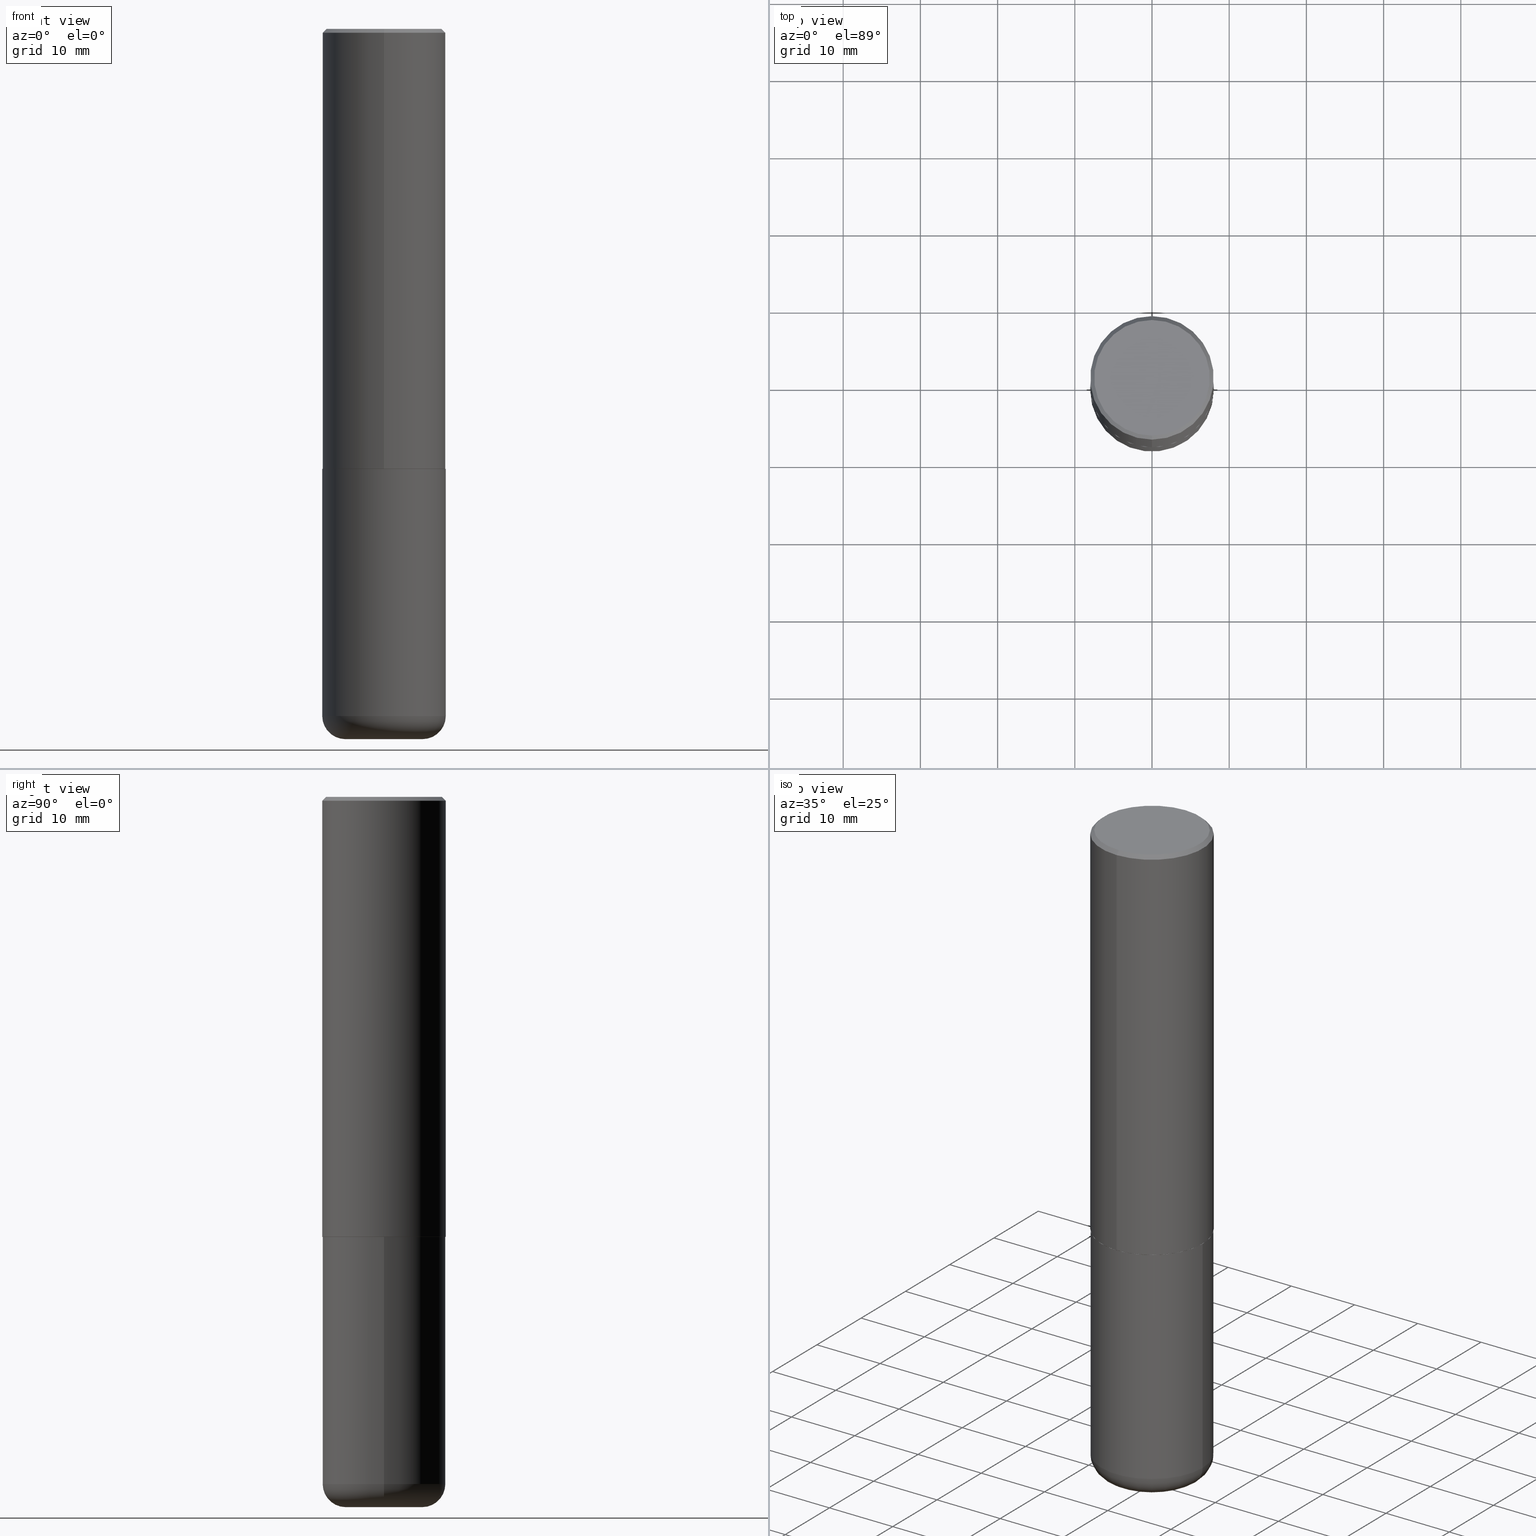
[diagram: canonical four-view strip — front | top / right | iso, engineering-drawing reading convention]
A machine part, canonical four-view strip (front | top / right | iso — engineering-drawing reading convention). The complete STEP part file that produces these views, byte-faithful:
ISO-10303-21;
HEADER;
FILE_DESCRIPTION (( 'STEP AP203' ),
    '1' );
FILE_NAME ('47136.STEP',
    '2024-03-05T22:31:48',
    ( '' ),
    ( '' ),
    'SwSTEP 2.0',
    'SolidWorks 2023',
    '' );
FILE_SCHEMA (( 'CONFIG_CONTROL_DESIGN' ));
ENDSEC;

DATA;
#1 = EDGE_LOOP ( 'NONE', ( #324, #160, #65, #389 ) ) ;
#2 = CARTESIAN_POINT ( 'NONE',  ( 2.059624841783564063E-15, 0.2949499999999999345, -9.678634946549864323E-16 ) ) ;
#3 = ORIENTED_EDGE ( 'NONE', *, *, #71, .F. ) ;
#4 = EDGE_CURVE ( 'NONE', #197, #285, #134, .T. ) ;
#5 = AXIS2_PLACEMENT_3D ( 'NONE', #89, #239, #58 ) ;
#6 = CIRCLE ( 'NONE', #146, 0.1968500000000000250 ) ;
#7 = CYLINDRICAL_SURFACE ( 'NONE', #52, 0.3149500000000000077 ) ;
#8 = ORIENTED_EDGE ( 'NONE', *, *, #110, .T. ) ;
#9 = DIRECTION ( 'NONE',  ( 1.000000000000000000, -6.982962677686266711E-15, 4.876176775795936353E-29 ) ) ;
#10 = ADVANCED_FACE ( 'NONE', ( #270 ), #73, .T. ) ;
#11 = APPLICATION_CONTEXT ( 'configuration controlled 3d designs of mechanical parts and assemblies' ) ;
#12 = FACE_OUTER_BOUND ( 'NONE', #275, .T. ) ;
#13 = AXIS2_PLACEMENT_3D ( 'NONE', #390, #196, #171 ) ;
#14 = ORIENTED_EDGE ( 'NONE', *, *, #348, .F. ) ;
#15 = PERSON_AND_ORGANIZATION ( #234, #17 ) ;
#16 = ORIENTED_EDGE ( 'NONE', *, *, #333, .T. ) ;
#17 = ORGANIZATION ( 'UNSPECIFIED', 'UNSPECIFIED', '' ) ;
#18 = CARTESIAN_POINT ( 'NONE',  ( 0.1968500000000000250, -1.402074161239241518E-14, -3.622000000000000330 ) ) ;
#19 = ORIENTED_EDGE ( 'NONE', *, *, #381, .F. ) ;
#20 = PRODUCT ( '47136', '47136', '', ( #299 ) ) ;
#21 = APPROVAL_STATUS ( 'not_yet_approved' ) ;
#22 = VERTEX_POINT ( 'NONE', #18 ) ;
#23 = ORIENTED_EDGE ( 'NONE', *, *, #329, .F. ) ;
#24 = LOCAL_TIME ( 17, 31, 48.00000000000000000, #276 ) ;
#25 = EDGE_CURVE ( 'NONE', #22, #131, #238, .T. ) ;
#26 = DIRECTION ( 'NONE',  ( 4.937700262164540154E-15, 0.7071067811865440200, -0.7071067811865511255 ) ) ;
#27 = DIRECTION ( 'NONE',  ( -4.851104656540955597E-15, -0.7071067811865487940, -0.7071067811865461294 ) ) ;
#28 = DIRECTION ( 'NONE',  ( -2.445468806185136597E-29, 3.491481338843145583E-15, 1.000000000000000000 ) ) ;
#29 = VECTOR ( 'NONE', #194, 39.37007874015748854 ) ;
#30 = CC_DESIGN_APPROVAL ( #77, ( #135 ) ) ;
#31 = VERTEX_POINT ( 'NONE', #82 ) ;
#32 = FACE_OUTER_BOUND ( 'NONE', #104, .T. ) ;
#33 = VERTEX_POINT ( 'NONE', #300 ) ;
#34 = CC_DESIGN_PERSON_AND_ORGANIZATION_ASSIGNMENT ( #212, #118, ( #20 ) ) ;
#35 = CARTESIAN_POINT ( 'NONE',  ( 2.234301632597690306E-15, 0.3139499999999921798, -2.244000000000001105 ) ) ;
#36 = ORIENTED_EDGE ( 'NONE', *, *, #406, .T. ) ;
#37 = DIRECTION ( 'NONE',  ( -2.445731576433639542E-29, 3.491105036891335583E-15, 1.000000000000000000 ) ) ;
#38 = CIRCLE ( 'NONE', #399, 0.2949499999999999345 ) ;
#39 = VERTEX_POINT ( 'NONE', #209 ) ;
#40 = DIRECTION ( 'NONE',  ( -2.445731576433639542E-29, 3.491105036891335583E-15, 1.000000000000000000 ) ) ;
#41 = EDGE_CURVE ( 'NONE', #33, #197, #117, .T. ) ;
#42 = DIRECTION ( 'NONE',  ( -2.445468806185136597E-29, 3.491481338843145583E-15, 1.000000000000000000 ) ) ;
#43 = AXIS2_PLACEMENT_3D ( 'NONE', #304, #61, #355 ) ;
#44 = CIRCLE ( 'NONE', #278, 0.1181000000000002742 ) ;
#45 = COORDINATED_UNIVERSAL_TIME_OFFSET ( 5, 0, .BEHIND. ) ;
#46 = ORIENTED_EDGE ( 'NONE', *, *, #186, .T. ) ;
#47 = CALENDAR_DATE ( 2024, 5, 3 ) ;
#48 = CARTESIAN_POINT ( 'NONE',  ( -2.199284095337290265E-15, -0.3149500000000001743, 1.099523531368926621E-15 ) ) ;
#49 = CC_DESIGN_DATE_AND_TIME_ASSIGNMENT ( #377, #81, ( #346 ) ) ;
#50 = PERSON_AND_ORGANIZATION_ROLE ( 'classification_officer' ) ;
#51 = DIRECTION ( 'NONE',  ( -2.445731576433639542E-29, 3.491105036891335583E-15, 1.000000000000000000 ) ) ;
#52 = AXIS2_PLACEMENT_3D ( 'NONE', #322, #42, #9 ) ;
#53 = APPROVAL_STATUS ( 'not_yet_approved' ) ;
#54 = CARTESIAN_POINT ( 'NONE',  ( -0.3149500000000000077, 2.237854346276435590E-15, -1.549218606675782676E-29 ) ) ;
#55 = ADVANCED_FACE ( 'NONE', ( #306 ), #391, .T. ) ;
#56 = PERSON_AND_ORGANIZATION ( #234, #17 ) ;
#57 = LINE ( 'NONE', #397, #140 ) ;
#58 = DIRECTION ( 'NONE',  ( 1.000000000000000000, -6.982962677686269866E-15, 4.883557194083114022E-29 ) ) ;
#59 = DIRECTION ( 'NONE',  ( -6.982962677686267499E-15, -1.000000000000000000, 3.491105036891335189E-15 ) ) ;
#60 = CARTESIAN_POINT ( 'NONE',  ( 4.891463152867296425E-31, -6.982210073782693945E-17, -0.02000000000000006981 ) ) ;
#61 = DIRECTION ( 'NONE',  ( -2.445468806185136597E-29, 3.491481338843145583E-15, 1.000000000000000000 ) ) ;
#62 = LINE ( 'NONE', #284, #108 ) ;
#63 = AXIS2_PLACEMENT_3D ( 'NONE', #91, #351, #192 ) ;
#64 = ADVANCED_FACE ( 'NONE', ( #277 ), #153, .T. ) ;
#65 = ORIENTED_EDGE ( 'NONE', *, *, #41, .T. ) ;
#66 = CARTESIAN_POINT ( 'NONE',  ( 5.488221657517086734E-29, -7.834039702784155040E-15, -2.243999999999999773 ) ) ;
#67 = ORIENTED_EDGE ( 'NONE', *, *, #393, .T. ) ;
#68 = DIRECTION ( 'NONE',  ( -6.982962677686266711E-15, -1.000000000000000000, 3.480615376543096919E-15 ) ) ;
#69 = ADVANCED_BREP_SHAPE_REPRESENTATION ( '47136', ( #206, #345, #216 ), #344 ) ;
#70 = ORIENTED_EDGE ( 'NONE', *, *, #240, .T. ) ;
#71 = EDGE_CURVE ( 'NONE', #385, #39, #57, .T. ) ;
#72 = DIRECTION ( 'NONE',  ( 6.982962677686265922E-15, 1.000000000000000000, -3.496670018878888311E-15 ) ) ;
#73 = TOROIDAL_SURFACE ( 'NONE', #5, 0.1968500000000000250, 0.1181000000000002881 ) ;
#74 = AXIS2_PLACEMENT_3D ( 'NONE', #60, #187, #418 ) ;
#75 = DIRECTION ( 'NONE',  ( -6.982962677686267499E-15, -1.000000000000000000, 3.491105036891335189E-15 ) ) ;
#76 = CARTESIAN_POINT ( 'NONE',  ( 4.891463152867296425E-31, -6.982210073782693945E-17, -0.02000000000000006981 ) ) ;
#77 = APPROVAL ( #53, 'UNSPECIFIED' ) ;
#78 = DIRECTION ( 'NONE',  ( 6.982962677686265922E-15, 1.000000000000000000, -3.491105036891335583E-15 ) ) ;
#79 = ORIENTED_EDGE ( 'NONE', *, *, #254, .T. ) ;
#80 = LINE ( 'NONE', #48, #120 ) ;
#81 = DATE_TIME_ROLE ( 'creation_date' ) ;
#82 = CARTESIAN_POINT ( 'NONE',  ( -2.160713844398143757E-15, -0.3149500000000001743, -0.01999999999999896652 ) ) ;
#83 = ADVANCED_FACE ( 'NONE', ( #367 ), #375, .T. ) ;
#84 = DIRECTION ( 'NONE',  ( -6.982962677686265922E-15, -1.000000000000000000, 3.469564049740290009E-15 ) ) ;
#85 = AXIS2_PLACEMENT_3D ( 'NONE', #382, #97, #221 ) ;
#86 = APPROVAL_ROLE ( '' ) ;
#87 = ORIENTED_EDGE ( 'NONE', *, *, #260, .T. ) ;
#88 = SECURITY_CLASSIFICATION_LEVEL ( 'unclassified' ) ;
#89 = CARTESIAN_POINT ( 'NONE',  ( 8.568678149992099474E-29, -1.223380146317249786E-14, -3.503899999999999793 ) ) ;
#90 = DESIGN_CONTEXT ( 'detailed design', #11, 'design' ) ;
#91 = CARTESIAN_POINT ( 'NONE',  ( 5.487632001079445967E-29, -7.834884124364017250E-15, -2.243999999999999773 ) ) ;
#92 = EDGE_CURVE ( 'NONE', #341, #31, #80, .T. ) ;
#93 = CIRCLE ( 'NONE', #352, 0.3149500000000002853 ) ;
#94 = CIRCLE ( 'NONE', #408, 0.1181000000000002742 ) ;
#95 = LOCAL_TIME ( 17, 31, 48.00000000000000000, #45 ) ;
#96 = DIRECTION ( 'NONE',  ( -2.445731576433639542E-29, 3.491105036891335583E-15, 1.000000000000000000 ) ) ;
#97 = DIRECTION ( 'NONE',  ( 2.438088387897960049E-29, -3.491481338843145188E-15, -1.000000000000000000 ) ) ;
#98 = ORIENTED_EDGE ( 'NONE', *, *, #92, .T. ) ;
#99 = CARTESIAN_POINT ( 'NONE',  ( 2.199284095337290265E-15, 0.3149500000000000077, -0.02000000000000116962 ) ) ;
#100 = ORIENTED_EDGE ( 'NONE', *, *, #369, .T. ) ;
#101 = FACE_OUTER_BOUND ( 'NONE', #201, .T. ) ;
#102 = AXIS2_PLACEMENT_3D ( 'NONE', #347, #124, #59 ) ;
#103 = EDGE_CURVE ( 'NONE', #341, #385, #93, .T. ) ;
#104 = EDGE_LOOP ( 'NONE', ( #70, #67 ) ) ;
#105 = DIRECTION ( 'NONE',  ( -2.445468806185136597E-29, 3.491481338843145583E-15, 1.000000000000000000 ) ) ;
#106 = EDGE_LOOP ( 'NONE', ( #214, #253 ) ) ;
#107 = DIRECTION ( 'NONE',  ( -2.445731576433639542E-29, 3.491105036891335583E-15, 1.000000000000000000 ) ) ;
#108 = VECTOR ( 'NONE', #27, 39.37007874015748854 ) ;
#109 = CARTESIAN_POINT ( 'NONE',  ( 4.891463152867296425E-31, -6.982210073782693945E-17, -0.02000000000000006981 ) ) ;
#110 = EDGE_CURVE ( 'NONE', #258, #285, #340, .T. ) ;
#111 = CALENDAR_DATE ( 2024, 5, 3 ) ;
#112 = DIRECTION ( 'NONE',  ( -2.445731576433639542E-29, 3.491105036891335583E-15, 1.000000000000000000 ) ) ;
#113 = CALENDAR_DATE ( 2024, 5, 3 ) ;
#114 = CARTESIAN_POINT ( 'NONE',  ( 5.488221657517087855E-29, -7.834039702784156618E-15, -2.244000000000000217 ) ) ;
#115 = EDGE_CURVE ( 'NONE', #33, #258, #325, .T. ) ;
#116 = SHAPE_DEFINITION_REPRESENTATION ( #182, #69 ) ;
#117 = LINE ( 'NONE', #183, #157 ) ;
#118 = PERSON_AND_ORGANIZATION_ROLE ( 'design_owner' ) ;
#119 = DIRECTION ( 'NONE',  ( 1.000000000000000000, -6.982962677686267499E-15, 0.000000000000000000 ) ) ;
#120 = VECTOR ( 'NONE', #51, 39.37007874015748143 ) ;
#121 = DATE_AND_TIME ( #47, #191 ) ;
#122 = EDGE_LOOP ( 'NONE', ( #193, #133, #145, #331 ) ) ;
#123 = FACE_OUTER_BOUND ( 'NONE', #106, .T. ) ;
#124 = DIRECTION ( 'NONE',  ( -2.445731576433639542E-29, 3.491105036891335583E-15, 1.000000000000000000 ) ) ;
#125 = CC_DESIGN_PERSON_AND_ORGANIZATION_ASSIGNMENT ( #15, #370, ( #346 ) ) ;
#126 = VECTOR ( 'NONE', #167, 39.37007874015748854 ) ;
#127 = CC_DESIGN_SECURITY_CLASSIFICATION ( #303, ( #135 ) ) ;
#128 = DIRECTION ( 'NONE',  ( -1.000000000000000000, 7.105427357601003436E-15, 0.000000000000000000 ) ) ;
#129 = CC_DESIGN_PERSON_AND_ORGANIZATION_ASSIGNMENT ( #207, #50, ( #303 ) ) ;
#130 = DIRECTION ( 'NONE',  ( -2.445468806185136597E-29, 3.491481338843145583E-15, 1.000000000000000000 ) ) ;
#131 = VERTEX_POINT ( 'NONE', #279 ) ;
#132 = CYLINDRICAL_SURFACE ( 'NONE', #265, 0.3149500000000000077 ) ;
#133 = ORIENTED_EDGE ( 'NONE', *, *, #165, .T. ) ;
#134 = CIRCLE ( 'NONE', #365, 0.3149500000000000077 ) ;
#135 = PRODUCT_DEFINITION_FORMATION_WITH_SPECIFIED_SOURCE ( 'ANY', '', #20, .NOT_KNOWN. ) ;
#136 = ORIENTED_EDGE ( 'NONE', *, *, #333, .F. ) ;
#137 = DIRECTION ( 'NONE',  ( 2.445731576433639542E-29, -3.491105036891335583E-15, -1.000000000000000000 ) ) ;
#138 = ORIENTED_EDGE ( 'NONE', *, *, #103, .T. ) ;
#139 = CARTESIAN_POINT ( 'NONE',  ( 2.237854346276464384E-15, 0.3149499999999924027, -2.243000000000000771 ) ) ;
#140 = VECTOR ( 'NONE', #112, 39.37007874015748143 ) ;
#141 = ADVANCED_FACE ( 'NONE', ( #101 ), #132, .T. ) ;
#142 = DIRECTION ( 'NONE',  ( -2.445731576433639542E-29, 3.491105036891335583E-15, 1.000000000000000000 ) ) ;
#143 = ORIENTED_EDGE ( 'NONE', *, *, #348, .T. ) ;
#144 = COORDINATED_UNIVERSAL_TIME_OFFSET ( 5, 0, .BEHIND. ) ;
#145 = ORIENTED_EDGE ( 'NONE', *, *, #329, .T. ) ;
#146 = AXIS2_PLACEMENT_3D ( 'NONE', #223, #130, #412 ) ;
#147 = DATE_AND_TIME ( #111, #271 ) ;
#148 = ORIENTED_EDGE ( 'NONE', *, *, #186, .F. ) ;
#149 = ORIENTED_EDGE ( 'NONE', *, *, #165, .F. ) ;
#150 = CALENDAR_DATE ( 2024, 5, 3 ) ;
#151 = DIRECTION ( 'NONE',  ( -2.445731576433639542E-29, 3.491105036891335583E-15, 1.000000000000000000 ) ) ;
#152 = AXIS2_PLACEMENT_3D ( 'NONE', #109, #107, #388 ) ;
#153 = CYLINDRICAL_SURFACE ( 'NONE', #263, 0.3149500000000001743 ) ;
#154 = CARTESIAN_POINT ( 'NONE',  ( 5.488221657517087855E-29, -7.834039702784156618E-15, -2.244000000000000217 ) ) ;
#155 = FACE_OUTER_BOUND ( 'NONE', #315, .T. ) ;
#156 = EDGE_CURVE ( 'NONE', #181, #39, #255, .T. ) ;
#157 = VECTOR ( 'NONE', #308, 39.37007874015748143 ) ;
#158 = APPROVAL_PERSON_ORGANIZATION ( #204, #269, #404 ) ;
#159 = DIRECTION ( 'NONE',  ( -6.982962677686266711E-15, -1.000000000000000000, 3.480615376543096919E-15 ) ) ;
#160 = ORIENTED_EDGE ( 'NONE', *, *, #381, .T. ) ;
#161 = CARTESIAN_POINT ( 'NONE',  ( 0.1968500000000000250, -1.360839766627503947E-14, -3.503899999999999793 ) ) ;
#162 = ORIENTED_EDGE ( 'NONE', *, *, #156, .T. ) ;
#163 = CARTESIAN_POINT ( 'NONE',  ( -2.199284095337236228E-15, -0.3149500000000081124, -2.242999999999998550 ) ) ;
#164 = ORIENTED_EDGE ( 'NONE', *, *, #243, .F. ) ;
#165 = EDGE_CURVE ( 'NONE', #229, #31, #62, .T. ) ;
#166 = CLOSED_SHELL ( 'NONE', ( #141, #10, #310, #398, #83, #281 ) ) ;
#167 = DIRECTION ( 'NONE',  ( -4.937700262164378437E-15, -0.7071067811865208164, 0.7071067811865739960 ) ) ;
#168 = CIRCLE ( 'NONE', #152, 0.3149500000000000632 ) ;
#169 = CARTESIAN_POINT ( 'NONE',  ( -3.024779852765215528E-45, 4.317654595143425060E-31, 1.236758719522255372E-16 ) ) ;
#170 = CYLINDRICAL_SURFACE ( 'NONE', #361, 0.3149500000000001743 ) ;
#171 = DIRECTION ( 'NONE',  ( -6.982962677686266711E-15, -1.000000000000000000, 3.480615376543096919E-15 ) ) ;
#172 = DATE_AND_TIME ( #113, #95 ) ;
#173 = ORIENTED_EDGE ( 'NONE', *, *, #260, .F. ) ;
#174 = ADVANCED_FACE ( 'NONE', ( #188 ), #313, .F. ) ;
#175 = CARTESIAN_POINT ( 'NONE',  ( 0.000000000000000000, 0.000000000000000000, 0.000000000000000000 ) ) ;
#176 = ORIENTED_EDGE ( 'NONE', *, *, #25, .T. ) ;
#177 = DIRECTION ( 'NONE',  ( 1.000000000000000000, -6.982962677686266711E-15, 0.000000000000000000 ) ) ;
#178 = PERSON_AND_ORGANIZATION_ROLE ( 'creator' ) ;
#179 = DIRECTION ( 'NONE',  ( -2.445468806185136877E-29, 3.491481338843145188E-15, 1.000000000000000000 ) ) ;
#180 = PERSON_AND_ORGANIZATION ( #234, #17 ) ;
#181 = VERTEX_POINT ( 'NONE', #411 ) ;
#182 = PRODUCT_DEFINITION_SHAPE ( 'NONE', 'NONE',  #346 ) ;
#183 = CARTESIAN_POINT ( 'NONE',  ( 0.3149500000000000077, -2.199284095337289871E-15, 1.535751875536930130E-29 ) ) ;
#184 = AXIS2_PLACEMENT_3D ( 'NONE', #76, #357, #200 ) ;
#185 = DIRECTION ( 'NONE',  ( -2.445731576433639262E-29, 3.491105036891335583E-15, 1.000000000000000000 ) ) ;
#186 = EDGE_CURVE ( 'NONE', #261, #385, #226, .T. ) ;
#187 = DIRECTION ( 'NONE',  ( 2.445731576433639542E-29, -3.491105036891335583E-15, -1.000000000000000000 ) ) ;
#188 = FACE_OUTER_BOUND ( 'NONE', #318, .T. ) ;
#189 = EDGE_LOOP ( 'NONE', ( #138, #364, #23, #247 ) ) ;
#190 = AXIS2_PLACEMENT_3D ( 'NONE', #241, #332, #409 ) ;
#191 = LOCAL_TIME ( 17, 31, 48.00000000000000000, #372 ) ;
#192 = DIRECTION ( 'NONE',  ( -1.000000000000000000, 6.982962677686265922E-15, -4.876176775795935793E-29 ) ) ;
#193 = ORIENTED_EDGE ( 'NONE', *, *, #393, .F. ) ;
#194 = DIRECTION ( 'NONE',  ( 5.024295867787889629E-15, 0.7071067811865257013, 0.7071067811865691111 ) ) ;
#195 = ORIENTED_EDGE ( 'NONE', *, *, #4, .T. ) ;
#196 = DIRECTION ( 'NONE',  ( -2.445731576433639542E-29, 3.491105036891335583E-15, 1.000000000000000000 ) ) ;
#197 = VERTEX_POINT ( 'NONE', #311 ) ;
#198 = CARTESIAN_POINT ( 'NONE',  ( -2.192301132659548636E-15, -0.3139500000000078339, -2.243999999999998884 ) ) ;
#199 = CIRCLE ( 'NONE', #301, 0.3149500000000000077 ) ;
#200 = DIRECTION ( 'NONE',  ( -6.982962677686265922E-15, -1.000000000000000000, 3.496670018878888311E-15 ) ) ;
#201 = EDGE_LOOP ( 'NONE', ( #256, #8, #356, #387 ) ) ;
#202 = CC_DESIGN_PERSON_AND_ORGANIZATION_ASSIGNMENT ( #402, #305, ( #135 ) ) ;
#203 = AXIS2_PLACEMENT_3D ( 'NONE', #294, #37, #259 ) ;
#204 = PERSON_AND_ORGANIZATION ( #234, #17 ) ;
#205 = DIRECTION ( 'NONE',  ( -6.982962677686266711E-15, -1.000000000000000000, 3.480615376543096919E-15 ) ) ;
#206 = MANIFOLD_SOLID_BREP ( 'Body-Move/Copy2[1]', #166 ) ;
#207 = PERSON_AND_ORGANIZATION ( #234, #17 ) ;
#208 = DIRECTION ( 'NONE',  ( -2.445731576433639542E-29, 3.491105036891335583E-15, 1.000000000000000000 ) ) ;
#209 = CARTESIAN_POINT ( 'NONE',  ( 2.199284095337290265E-15, 0.3149500000000000077, -0.02000000000000116962 ) ) ;
#210 = CONICAL_SURFACE ( 'NONE', #417, 0.3149500000000000632, 0.7853981633974467247 ) ;
#211 = APPROVAL_PERSON_ORGANIZATION ( #180, #368, #400 ) ;
#212 = PERSON_AND_ORGANIZATION ( #234, #17 ) ;
#213 = DATE_TIME_ROLE ( 'classification_date' ) ;
#214 = ORIENTED_EDGE ( 'NONE', *, *, #25, .F. ) ;
#215 = DIRECTION ( 'NONE',  ( -2.445468806185136597E-29, 3.491481338843145583E-15, 1.000000000000000000 ) ) ;
#216 = AXIS2_PLACEMENT_3D ( 'NONE', #175, #407, #336 ) ;
#217 = EDGE_CURVE ( 'NONE', #285, #197, #199, .T. ) ;
#218 = CIRCLE ( 'NONE', #203, 0.3149500000000002853 ) ;
#219 = LOCAL_TIME ( 17, 31, 48.00000000000000000, #334 ) ;
#220 = CARTESIAN_POINT ( 'NONE',  ( 5.487632001079445967E-29, -7.834884124364017250E-15, -2.243999999999999773 ) ) ;
#221 = DIRECTION ( 'NONE',  ( -1.000000000000000000, 6.982962677686265922E-15, -4.876176775795935793E-29 ) ) ;
#222 = EDGE_LOOP ( 'NONE', ( #3, #143, #98, #136 ) ) ;
#223 = CARTESIAN_POINT ( 'NONE',  ( 8.857488016002565597E-29, -1.264614540928987357E-14, -3.622000000000000330 ) ) ;
#224 = VECTOR ( 'NONE', #179, 39.37007874015748143 ) ;
#225 = CIRCLE ( 'NONE', #102, 0.2949499999999999345 ) ;
#226 = LINE ( 'NONE', #317, #29 ) ;
#227 = EDGE_CURVE ( 'NONE', #22, #33, #44, .T. ) ;
#228 = ORIENTED_EDGE ( 'NONE', *, *, #103, .F. ) ;
#229 = VERTEX_POINT ( 'NONE', #248 ) ;
#230 = DIRECTION ( 'NONE',  ( -6.982962677686264344E-15, -1.000000000000000000, 3.491105036891335189E-15 ) ) ;
#231 = EDGE_LOOP ( 'NONE', ( #148, #36, #100, #14 ) ) ;
#232 = AXIS2_PLACEMENT_3D ( 'NONE', #371, #273, #119 ) ;
#233 = LINE ( 'NONE', #198, #126 ) ;
#234 = PERSON ( 'UNSPECIFIED', 'UNSPECIFIED', 'UNSPECIFIED', ('UNSPECIFIED'), ('UNSPECIFIED'), ('UNSPECIFIED') ) ;
#235 =( NAMED_UNIT ( * ) SI_UNIT ( $, .STERADIAN. ) SOLID_ANGLE_UNIT ( ) );
#236 =( CONVERSION_BASED_UNIT ( 'INCH', #264 ) LENGTH_UNIT ( ) NAMED_UNIT ( #323 ) );
#237 = APPROVAL_DATE_TIME ( #339, #77 ) ;
#238 = CIRCLE ( 'NONE', #232, 0.1968500000000000250 ) ;
#239 = DIRECTION ( 'NONE',  ( -2.445468806185136597E-29, 3.491481338843145583E-15, 1.000000000000000000 ) ) ;
#240 = EDGE_CURVE ( 'NONE', #181, #229, #225, .T. ) ;
#241 = CARTESIAN_POINT ( 'NONE',  ( 8.568678149992099474E-29, -1.223380146317249786E-14, -3.503899999999999793 ) ) ;
#242 = CARTESIAN_POINT ( 'NONE',  ( 5.485775925940652970E-29, -7.830548597747266147E-15, -2.242999999999999883 ) ) ;
#243 = EDGE_CURVE ( 'NONE', #267, #261, #366, .T. ) ;
#244 = CALENDAR_DATE ( 2024, 5, 3 ) ;
#245 = ORIENTED_EDGE ( 'NONE', *, *, #227, .F. ) ;
#246 = AXIS2_PLACEMENT_3D ( 'NONE', #394, #142, #68 ) ;
#247 = ORIENTED_EDGE ( 'NONE', *, *, #92, .F. ) ;
#248 = CARTESIAN_POINT ( 'NONE',  ( -2.092108864420428031E-15, -0.2949499999999999345, 1.153377302583324726E-15 ) ) ;
#249 = ADVANCED_FACE ( 'NONE', ( #155 ), #257, .T. ) ;
#250 = CARTESIAN_POINT ( 'NONE',  ( 0.000000000000000000, 0.000000000000000000, 0.000000000000000000 ) ) ;
#251 = CARTESIAN_POINT ( 'NONE',  ( -2.192301132659548636E-15, -0.3139500000000078339, -2.243999999999998884 ) ) ;
#252 = CARTESIAN_POINT ( 'NONE',  ( -0.1968500000000000250, -1.083509808782873928E-14, -3.503899999999999793 ) ) ;
#253 = ORIENTED_EDGE ( 'NONE', *, *, #254, .F. ) ;
#254 = EDGE_CURVE ( 'NONE', #131, #22, #6, .T. ) ;
#255 = LINE ( 'NONE', #99, #392 ) ;
#256 = ORIENTED_EDGE ( 'NONE', *, *, #115, .T. ) ;
#257 = CONICAL_SURFACE ( 'NONE', #74, 0.3149500000000000632, 0.7853981633974467247 ) ;
#258 = VERTEX_POINT ( 'NONE', #282 ) ;
#259 = DIRECTION ( 'NONE',  ( -6.982962677686265922E-15, -1.000000000000000000, 3.469564049740290009E-15 ) ) ;
#260 = EDGE_CURVE ( 'NONE', #131, #258, #94, .T. ) ;
#261 = VERTEX_POINT ( 'NONE', #35 ) ;
#262 = DIRECTION ( 'NONE',  ( -2.445731576433639542E-29, 3.491105036891335583E-15, 1.000000000000000000 ) ) ;
#263 = AXIS2_PLACEMENT_3D ( 'NONE', #338, #208, #376 ) ;
#264 = LENGTH_MEASURE_WITH_UNIT ( LENGTH_MEASURE( 0.02539999999999999897 ), #327 );
#265 = AXIS2_PLACEMENT_3D ( 'NONE', #250, #215, #280 ) ;
#266 =( NAMED_UNIT ( * ) PLANE_ANGLE_UNIT ( ) SI_UNIT ( $, .RADIAN. ) );
#267 = VERTEX_POINT ( 'NONE', #251 ) ;
#268 = AXIS2_PLACEMENT_3D ( 'NONE', #114, #151, #205 ) ;
#269 = APPROVAL ( #21, 'UNSPECIFIED' ) ;
#270 = FACE_OUTER_BOUND ( 'NONE', #353, .T. ) ;
#271 = LOCAL_TIME ( 17, 31, 48.00000000000000000, #144 ) ;
#272 = APPROVAL_DATE_TIME ( #121, #269 ) ;
#273 = DIRECTION ( 'NONE',  ( -2.445468806185136597E-29, 3.491481338843145583E-15, 1.000000000000000000 ) ) ;
#274 = APPLICATION_PROTOCOL_DEFINITION ( 'international standard', 'config_control_design', 1994, #11 ) ;
#275 = EDGE_LOOP ( 'NONE', ( #335, #46, #228, #350 ) ) ;
#276 = COORDINATED_UNIVERSAL_TIME_OFFSET ( 5, 0, .BEHIND. ) ;
#277 = FACE_OUTER_BOUND ( 'NONE', #189, .T. ) ;
#278 = AXIS2_PLACEMENT_3D ( 'NONE', #161, #343, #380 ) ;
#279 = CARTESIAN_POINT ( 'NONE',  ( -0.1968500000000000250, -1.062169457542108922E-14, -3.622000000000000330 ) ) ;
#280 = DIRECTION ( 'NONE',  ( 1.000000000000000000, -6.982962677686266711E-15, 4.876176775795936353E-29 ) ) ;
#281 = ADVANCED_FACE ( 'NONE', ( #123 ), #384, .T. ) ;
#282 = CARTESIAN_POINT ( 'NONE',  ( -0.3149500000000001743, -9.995947116896060296E-15, -3.503899999999999793 ) ) ;
#283 = CIRCLE ( 'NONE', #13, 0.3139500000000000068 ) ;
#284 = CARTESIAN_POINT ( 'NONE',  ( -2.160713844398143757E-15, -0.3149500000000001743, -0.01999999999999896652 ) ) ;
#285 = VERTEX_POINT ( 'NONE', #349 ) ;
#286 = PLANE ( 'NONE',  #401 ) ;
#287 = ORIENTED_EDGE ( 'NONE', *, *, #227, .T. ) ;
#288 = CARTESIAN_POINT ( 'NONE',  ( 0.000000000000000000, 0.000000000000000000, 0.000000000000000000 ) ) ;
#289 = ORIENTED_EDGE ( 'NONE', *, *, #217, .T. ) ;
#290 = CIRCLE ( 'NONE', #316, 0.3149500000000000077 ) ;
#291 = CC_DESIGN_APPROVAL ( #368, ( #303 ) ) ;
#292 = FACE_OUTER_BOUND ( 'NONE', #1, .T. ) ;
#293 = DIRECTION ( 'NONE',  ( 1.000000000000000000, -6.982962677686263555E-15, 0.000000000000000000 ) ) ;
#294 = CARTESIAN_POINT ( 'NONE',  ( 5.485775925940652970E-29, -7.830548597747266147E-15, -2.242999999999999883 ) ) ;
#295 = CIRCLE ( 'NONE', #184, 0.3149500000000000632 ) ;
#296 = APPROVAL_PERSON_ORGANIZATION ( #374, #77, #86 ) ;
#297 = APPROVAL_DATE_TIME ( #172, #368 ) ;
#298 = ORIENTED_EDGE ( 'NONE', *, *, #240, .F. ) ;
#299 = MECHANICAL_CONTEXT ( 'NONE', #414, 'mechanical' ) ;
#300 = CARTESIAN_POINT ( 'NONE',  ( 0.3149500000000001743, -1.443308555850978931E-14, -3.503899999999999793 ) ) ;
#301 = AXIS2_PLACEMENT_3D ( 'NONE', #220, #28, #319 ) ;
#302 = CARTESIAN_POINT ( 'NONE',  ( 5.487632001079445967E-29, -7.834884124364017250E-15, -2.243999999999999773 ) ) ;
#303 = SECURITY_CLASSIFICATION ( '', '', #88 ) ;
#304 = CARTESIAN_POINT ( 'NONE',  ( 8.568678149992099474E-29, -1.223380146317249786E-14, -3.503899999999999793 ) ) ;
#305 = PERSON_AND_ORGANIZATION_ROLE ( 'design_supplier' ) ;
#306 = FACE_OUTER_BOUND ( 'NONE', #231, .T. ) ;
#307 = CC_DESIGN_DATE_AND_TIME_ASSIGNMENT ( #147, #213, ( #303 ) ) ;
#308 = DIRECTION ( 'NONE',  ( -2.445468806185136877E-29, 3.491481338843145188E-15, 1.000000000000000000 ) ) ;
#309 = CONICAL_SURFACE ( 'NONE', #246, 0.3139500000000000068, 0.7853981633974141952 ) ;
#310 = ADVANCED_FACE ( 'NONE', ( #383 ), #379, .F. ) ;
#311 = CARTESIAN_POINT ( 'NONE',  ( 0.3149500000000000077, -1.003416821970130712E-14, -2.243999999999999773 ) ) ;
#312 = DIRECTION ( 'NONE',  ( -6.982962677686265922E-15, -1.000000000000000000, 3.491105036891335583E-15 ) ) ;
#313 = PLANE ( 'NONE',  #337 ) ;
#314 = ADVANCED_FACE ( 'NONE', ( #32 ), #286, .F. ) ;
#315 = EDGE_LOOP ( 'NONE', ( #149, #298, #162, #16 ) ) ;
#316 = AXIS2_PLACEMENT_3D ( 'NONE', #362, #105, #293 ) ;
#317 = CARTESIAN_POINT ( 'NONE',  ( 2.230748918918889014E-15, 0.3139499999999921798, -2.244000000000001105 ) ) ;
#318 = EDGE_LOOP ( 'NONE', ( #164, #321 ) ) ;
#319 = DIRECTION ( 'NONE',  ( 1.000000000000000000, -6.982962677686266711E-15, 0.000000000000000000 ) ) ;
#320 = CC_DESIGN_PERSON_AND_ORGANIZATION_ASSIGNMENT ( #56, #178, ( #135 ) ) ;
#321 = ORIENTED_EDGE ( 'NONE', *, *, #406, .F. ) ;
#322 = CARTESIAN_POINT ( 'NONE',  ( 0.000000000000000000, 0.000000000000000000, 0.000000000000000000 ) ) ;
#323 = DIMENSIONAL_EXPONENTS ( 1.000000000000000000, 0.000000000000000000, 0.000000000000000000, 0.000000000000000000, 0.000000000000000000, 0.000000000000000000, 0.000000000000000000 ) ;
#324 = ORIENTED_EDGE ( 'NONE', *, *, #110, .F. ) ;
#325 = CIRCLE ( 'NONE', #43, 0.3149500000000000077 ) ;
#326 = FACE_OUTER_BOUND ( 'NONE', #122, .T. ) ;
#327 =( LENGTH_UNIT ( ) NAMED_UNIT ( * ) SI_UNIT ( $, .METRE. ) );
#328 = CARTESIAN_POINT ( 'NONE',  ( 4.891463152867296425E-31, -6.982210073782693945E-17, -0.02000000000000006981 ) ) ;
#329 = EDGE_CURVE ( 'NONE', #31, #39, #168, .T. ) ;
#330 = AXIS2_PLACEMENT_3D ( 'NONE', #154, #96, #159 ) ;
#331 = ORIENTED_EDGE ( 'NONE', *, *, #156, .F. ) ;
#332 = DIRECTION ( 'NONE',  ( -2.445468806185136597E-29, 3.491481338843145583E-15, 1.000000000000000000 ) ) ;
#333 = EDGE_CURVE ( 'NONE', #39, #31, #295, .T. ) ;
#334 = COORDINATED_UNIVERSAL_TIME_OFFSET ( 5, 0, .BEHIND. ) ;
#335 = ORIENTED_EDGE ( 'NONE', *, *, #243, .T. ) ;
#336 = DIRECTION ( 'NONE',  ( 1.000000000000000000, 0.000000000000000000, 0.000000000000000000 ) ) ;
#337 = AXIS2_PLACEMENT_3D ( 'NONE', #66, #185, #312 ) ;
#338 = CARTESIAN_POINT ( 'NONE',  ( 0.000000000000000000, 0.000000000000000000, 0.000000000000000000 ) ) ;
#339 = DATE_AND_TIME ( #150, #24 ) ;
#340 = LINE ( 'NONE', #54, #224 ) ;
#341 = VERTEX_POINT ( 'NONE', #163 ) ;
#342 = ADVANCED_FACE ( 'NONE', ( #363 ), #170, .T. ) ;
#343 = DIRECTION ( 'NONE',  ( -6.982962677686266711E-15, -1.000000000000000000, 3.491481338843145583E-15 ) ) ;
#344 =( GEOMETRIC_REPRESENTATION_CONTEXT ( 3 ) GLOBAL_UNCERTAINTY_ASSIGNED_CONTEXT ( ( #410 ) ) GLOBAL_UNIT_ASSIGNED_CONTEXT ( ( #236, #266, #235 ) ) REPRESENTATION_CONTEXT ( 'NONE', 'WORKASPACE' ) );
#345 = MANIFOLD_SOLID_BREP ( 'Body-Move/Copy2[2]', #416 ) ;
#346 = PRODUCT_DEFINITION ( 'UNKNOWN', '', #135, #90 ) ;
#347 = CARTESIAN_POINT ( 'NONE',  ( -3.024779852765215528E-45, 4.317654595143425060E-31, 1.236758719522255372E-16 ) ) ;
#348 = EDGE_CURVE ( 'NONE', #385, #341, #218, .T. ) ;
#349 = CARTESIAN_POINT ( 'NONE',  ( -0.3149500000000000077, -7.796488447491823147E-15, -2.243999999999999773 ) ) ;
#350 = ORIENTED_EDGE ( 'NONE', *, *, #369, .F. ) ;
#351 = DIRECTION ( 'NONE',  ( 2.438088387897960049E-29, -3.491481338843145188E-15, -1.000000000000000000 ) ) ;
#352 = AXIS2_PLACEMENT_3D ( 'NONE', #242, #373, #84 ) ;
#353 = EDGE_LOOP ( 'NONE', ( #176, #87, #378, #245 ) ) ;
#354 = CC_DESIGN_APPROVAL ( #269, ( #346 ) ) ;
#355 = DIRECTION ( 'NONE',  ( 1.000000000000000000, -6.982962677686263555E-15, 0.000000000000000000 ) ) ;
#356 = ORIENTED_EDGE ( 'NONE', *, *, #4, .F. ) ;
#357 = DIRECTION ( 'NONE',  ( -2.445731576433639542E-29, 3.491105036891335583E-15, 1.000000000000000000 ) ) ;
#358 = EDGE_LOOP ( 'NONE', ( #195, #289 ) ) ;
#359 = ADVANCED_FACE ( 'NONE', ( #326 ), #210, .T. ) ;
#360 = DIRECTION ( 'NONE',  ( 2.445731576433639262E-29, -3.491105036891335583E-15, -1.000000000000000000 ) ) ;
#361 = AXIS2_PLACEMENT_3D ( 'NONE', #288, #262, #230 ) ;
#362 = CARTESIAN_POINT ( 'NONE',  ( 8.568678149992099474E-29, -1.223380146317249786E-14, -3.503899999999999793 ) ) ;
#363 = FACE_OUTER_BOUND ( 'NONE', #222, .T. ) ;
#364 = ORIENTED_EDGE ( 'NONE', *, *, #71, .T. ) ;
#365 = AXIS2_PLACEMENT_3D ( 'NONE', #302, #405, #177 ) ;
#366 = CIRCLE ( 'NONE', #330, 0.3139500000000000068 ) ;
#367 = FACE_OUTER_BOUND ( 'NONE', #403, .T. ) ;
#368 = APPROVAL ( #395, 'UNSPECIFIED' ) ;
#369 = EDGE_CURVE ( 'NONE', #267, #341, #233, .T. ) ;
#370 = PERSON_AND_ORGANIZATION_ROLE ( 'creator' ) ;
#371 = CARTESIAN_POINT ( 'NONE',  ( 8.857488016002565597E-29, -1.264614540928987357E-14, -3.622000000000000330 ) ) ;
#372 = COORDINATED_UNIVERSAL_TIME_OFFSET ( 5, 0, .BEHIND. ) ;
#373 = DIRECTION ( 'NONE',  ( -2.445731576433639542E-29, 3.491105036891335583E-15, 1.000000000000000000 ) ) ;
#374 = PERSON_AND_ORGANIZATION ( #234, #17 ) ;
#375 = TOROIDAL_SURFACE ( 'NONE', #190, 0.1968500000000000250, 0.1181000000000002881 ) ;
#376 = DIRECTION ( 'NONE',  ( -6.982962677686264344E-15, -1.000000000000000000, 3.491105036891335189E-15 ) ) ;
#377 = DATE_AND_TIME ( #244, #219 ) ;
#378 = ORIENTED_EDGE ( 'NONE', *, *, #115, .F. ) ;
#379 = PLANE ( 'NONE',  #63 ) ;
#380 = DIRECTION ( 'NONE',  ( 1.000000000000000000, -6.982962677686273021E-15, 0.000000000000000000 ) ) ;
#381 = EDGE_CURVE ( 'NONE', #258, #33, #290, .T. ) ;
#382 = CARTESIAN_POINT ( 'NONE',  ( 1.837453072857033597E-29, -2.269923500344985533E-14, -3.621999999999999886 ) ) ;
#383 = FACE_OUTER_BOUND ( 'NONE', #358, .T. ) ;
#384 = PLANE ( 'NONE',  #85 ) ;
#385 = VERTEX_POINT ( 'NONE', #139 ) ;
#386 = APPLICATION_PROTOCOL_DEFINITION ( 'international standard', 'config_control_design', 1994, #414 ) ;
#387 = ORIENTED_EDGE ( 'NONE', *, *, #41, .F. ) ;
#388 = DIRECTION ( 'NONE',  ( -6.982962677686265922E-15, -1.000000000000000000, 3.496670018878888311E-15 ) ) ;
#389 = ORIENTED_EDGE ( 'NONE', *, *, #217, .F. ) ;
#390 = CARTESIAN_POINT ( 'NONE',  ( 5.488221657517087855E-29, -7.834039702784156618E-15, -2.244000000000000217 ) ) ;
#391 = CONICAL_SURFACE ( 'NONE', #268, 0.3139500000000000068, 0.7853981633974141952 ) ;
#392 = VECTOR ( 'NONE', #26, 39.37007874015748143 ) ;
#393 = EDGE_CURVE ( 'NONE', #229, #181, #38, .T. ) ;
#394 = CARTESIAN_POINT ( 'NONE',  ( 5.488221657517087855E-29, -7.834039702784156618E-15, -2.244000000000000217 ) ) ;
#395 = APPROVAL_STATUS ( 'not_yet_approved' ) ;
#396 = PRODUCT_RELATED_PRODUCT_CATEGORY ( 'detail', '', ( #20 ) ) ;
#397 = CARTESIAN_POINT ( 'NONE',  ( 2.237854346276435985E-15, 0.3149500000000001743, -1.099523531368926621E-15 ) ) ;
#398 = ADVANCED_FACE ( 'NONE', ( #292 ), #7, .T. ) ;
#399 = AXIS2_PLACEMENT_3D ( 'NONE', #169, #40, #75 ) ;
#400 = APPROVAL_ROLE ( '' ) ;
#401 = AXIS2_PLACEMENT_3D ( 'NONE', #2, #360, #78 ) ;
#402 = PERSON_AND_ORGANIZATION ( #234, #17 ) ;
#403 = EDGE_LOOP ( 'NONE', ( #173, #79, #287, #19 ) ) ;
#404 = APPROVAL_ROLE ( '' ) ;
#405 = DIRECTION ( 'NONE',  ( -2.445468806185136597E-29, 3.491481338843145583E-15, 1.000000000000000000 ) ) ;
#406 = EDGE_CURVE ( 'NONE', #261, #267, #283, .T. ) ;
#407 = DIRECTION ( 'NONE',  ( 0.000000000000000000, 0.000000000000000000, 1.000000000000000000 ) ) ;
#408 = AXIS2_PLACEMENT_3D ( 'NONE', #252, #415, #128 ) ;
#409 = DIRECTION ( 'NONE',  ( 1.000000000000000000, -6.982962677686269866E-15, 4.883557194083114022E-29 ) ) ;
#410 = UNCERTAINTY_MEASURE_WITH_UNIT (LENGTH_MEASURE( 1.000000000000000082E-05 ), #236, 'distance_accuracy_value', 'NONE');
#411 = CARTESIAN_POINT ( 'NONE',  ( 2.129454468560426967E-15, 0.2949499999999999345, -9.060255586788737993E-16 ) ) ;
#412 = DIRECTION ( 'NONE',  ( 1.000000000000000000, -6.982962677686267499E-15, 0.000000000000000000 ) ) ;
#413 = ADVANCED_FACE ( 'NONE', ( #12 ), #309, .T. ) ;
#414 = APPLICATION_CONTEXT ( 'configuration controlled 3d designs of mechanical parts and assemblies' ) ;
#415 = DIRECTION ( 'NONE',  ( 7.105427357601001859E-15, 1.000000000000000000, -3.491481338843145583E-15 ) ) ;
#416 = CLOSED_SHELL ( 'NONE', ( #413, #64, #359, #249, #342, #55, #174, #314 ) ) ;
#417 = AXIS2_PLACEMENT_3D ( 'NONE', #328, #137, #72 ) ;
#418 = DIRECTION ( 'NONE',  ( 6.982962677686265922E-15, 1.000000000000000000, -3.496670018878888311E-15 ) ) ;
ENDSEC;
END-ISO-10303-21;
